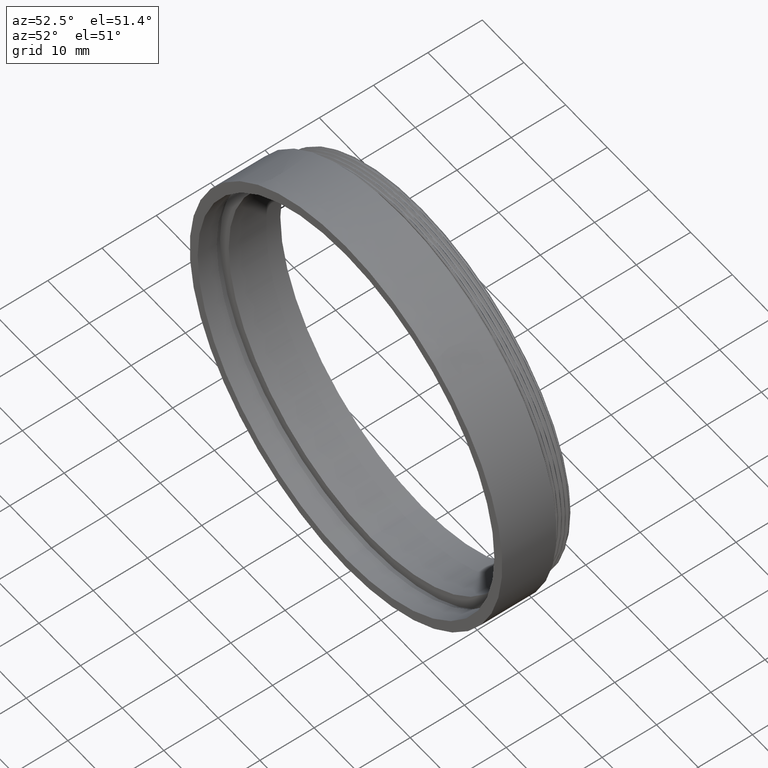
[diagram: clean part render]
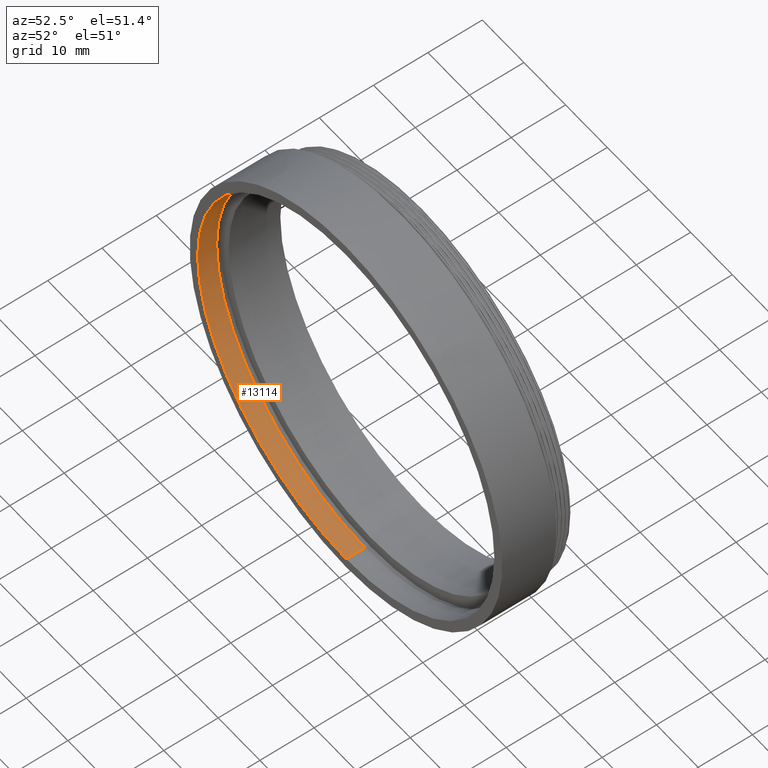
[diagram: same view with one face highlighted and labeled with its STEP entity id]
A machine part, auxiliary view. The second image highlights one B-rep face of the part: STEP entity #13114.
In plain terms, the highlighted cylindrical surface (partial cylindrical patch) has radius 35.6 mm, axis along (-0, -1, -0).
Its self-contained STEP definition (entity closure, byte-faithful):
#232 = CARTESIAN_POINT ( 'NONE',  ( 4.359742604964845640E-15, 4.701941862067099187, 35.60000000000218279 ) ) ;
#305 = CARTESIAN_POINT ( 'NONE',  ( 4.359742604964845640E-15, 1.201941862066846500, 35.60000000000218279 ) ) ;
#664 = VERTEX_POINT ( 'NONE', #15325 ) ;
#1059 = AXIS2_PLACEMENT_3D ( 'NONE', #1943, #14727, #2029 ) ;
#1230 = ORIENTED_EDGE ( 'NONE', *, *, #4532, .T. ) ;
#1301 = CARTESIAN_POINT ( 'NONE',  ( 0.0000000000000000000, 4.701941862067099187, 0.0000000000000000000 ) ) ;
#1377 = DIRECTION ( 'NONE',  ( -0.0000000000000000000, -1.000000000000000000, -0.0000000000000000000 ) ) ;
#1698 = EDGE_CURVE ( 'NONE', #16055, #7720, #5283, .T. ) ;
#1943 = CARTESIAN_POINT ( 'NONE',  ( 0.0000000000000000000, 0.0000000000000000000, 0.0000000000000000000 ) ) ;
#2029 = DIRECTION ( 'NONE',  ( 0.0000000000000000000, 0.0000000000000000000, -1.000000000000000000 ) ) ;
#2047 = CIRCLE ( 'NONE', #8653, 35.60000000000218279 ) ;
#2885 = ORIENTED_EDGE ( 'NONE', *, *, #10982, .F. ) ;
#2978 = CARTESIAN_POINT ( 'NONE',  ( 0.0000000000000000000, 1.201941862066846500, -35.60000000000218279 ) ) ;
#3617 = VERTEX_POINT ( 'NONE', #2978 ) ;
#4532 = EDGE_CURVE ( 'NONE', #7720, #3617, #2047, .T. ) ;
#5142 = CARTESIAN_POINT ( 'NONE',  ( 0.0000000000000000000, 0.0000000000000000000, -35.60000000000218279 ) ) ;
#5283 = LINE ( 'NONE', #6069, #11343 ) ;
#6069 = CARTESIAN_POINT ( 'NONE',  ( 4.359742604964845640E-15, 0.0000000000000000000, 35.60000000000218279 ) ) ;
#6930 = CARTESIAN_POINT ( 'NONE',  ( 0.0000000000000000000, 1.201941862066846500, 0.0000000000000000000 ) ) ;
#7720 = VERTEX_POINT ( 'NONE', #305 ) ;
#8158 = DIRECTION ( 'NONE',  ( 0.0000000000000000000, 0.0000000000000000000, -1.000000000000000000 ) ) ;
#8653 = AXIS2_PLACEMENT_3D ( 'NONE', #6930, #13318, #8158 ) ;
#9735 = EDGE_CURVE ( 'NONE', #664, #3617, #13948, .T. ) ;
#10086 = EDGE_LOOP ( 'NONE', ( #2885, #16174, #1230, #15775 ) ) ;
#10729 = FACE_OUTER_BOUND ( 'NONE', #10086, .T. ) ;
#10982 = EDGE_CURVE ( 'NONE', #16055, #664, #12408, .T. ) ;
#11343 = VECTOR ( 'NONE', #16196, 1000.000000000000000 ) ;
#12408 = CIRCLE ( 'NONE', #15061, 35.60000000000218279 ) ;
#13114 = ADVANCED_FACE ( 'NONE', ( #10729 ), #14646, .F. ) ;
#13318 = DIRECTION ( 'NONE',  ( -0.0000000000000000000, -1.000000000000000000, -0.0000000000000000000 ) ) ;
#13910 = DIRECTION ( 'NONE',  ( 0.0000000000000000000, 0.0000000000000000000, -1.000000000000000000 ) ) ;
#13948 = LINE ( 'NONE', #5142, #15856 ) ;
#14195 = DIRECTION ( 'NONE',  ( -0.0000000000000000000, -1.000000000000000000, -0.0000000000000000000 ) ) ;
#14646 = CYLINDRICAL_SURFACE ( 'NONE', #1059, 35.60000000000218279 ) ;
#14727 = DIRECTION ( 'NONE',  ( -0.0000000000000000000, -1.000000000000000000, -0.0000000000000000000 ) ) ;
#15061 = AXIS2_PLACEMENT_3D ( 'NONE', #1301, #1377, #13910 ) ;
#15325 = CARTESIAN_POINT ( 'NONE',  ( 0.0000000000000000000, 4.701941862067099187, -35.60000000000218279 ) ) ;
#15775 = ORIENTED_EDGE ( 'NONE', *, *, #9735, .F. ) ;
#15856 = VECTOR ( 'NONE', #14195, 1000.000000000000000 ) ;
#16055 = VERTEX_POINT ( 'NONE', #232 ) ;
#16174 = ORIENTED_EDGE ( 'NONE', *, *, #1698, .T. ) ;
#16196 = DIRECTION ( 'NONE',  ( -0.0000000000000000000, -1.000000000000000000, -0.0000000000000000000 ) ) ;